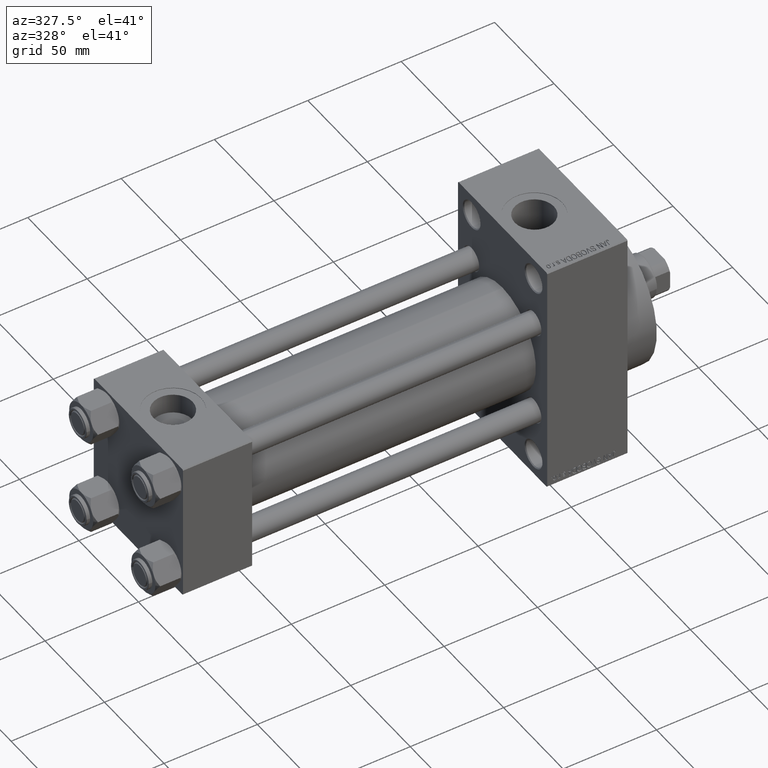
[diagram: clean part render]
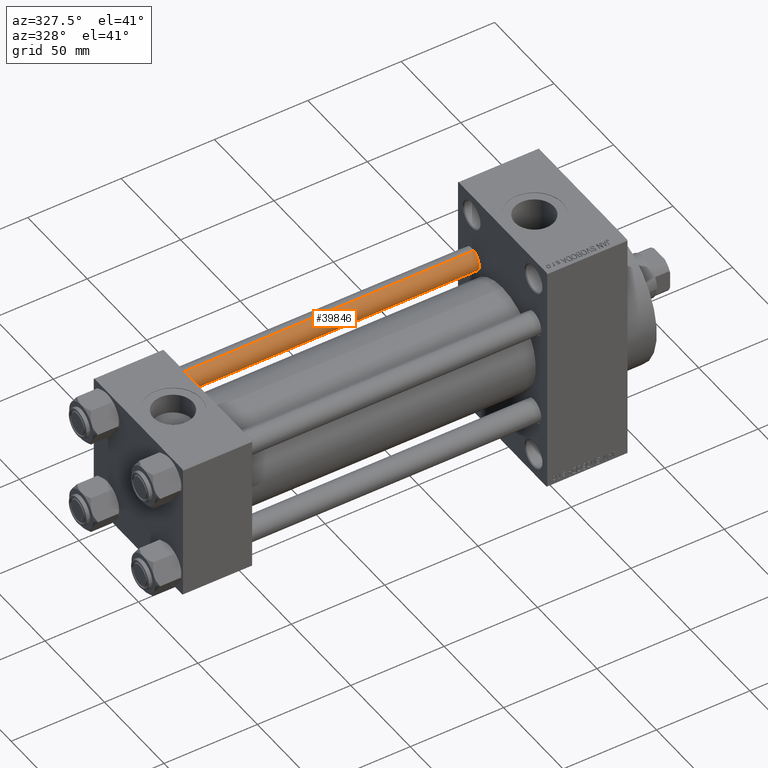
[diagram: same view with one face highlighted and labeled with its STEP entity id]
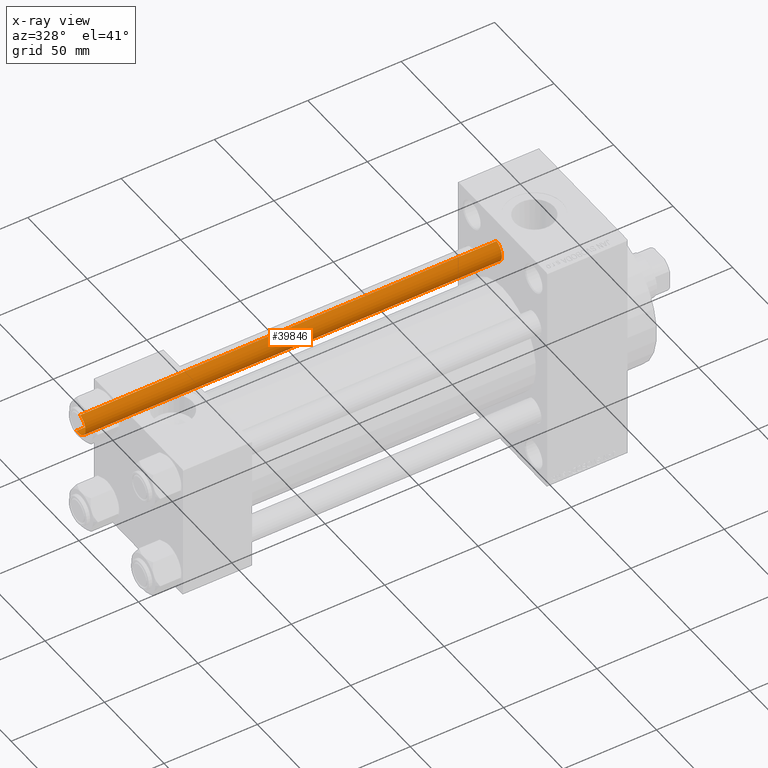
[diagram: x-ray of the same camera — body ghosted, the highlighted face saturated]
A machine part, auxiliary view. The second image highlights one B-rep face of the part: STEP entity #39846.
The next image is the same camera in x-ray: the body ghosted, the highlighted face saturated — about 0% of this face is hidden behind the body in this view.
In plain terms, the highlighted cylindrical surface (edge-blend (fillet) strip) has radius 6 mm, axis along (-1, -0, 0).
Its self-contained STEP definition (entity closure, byte-faithful):
#2439 = FACE_OUTER_BOUND ( 'NONE', #40490, .T. ) ;
#2674 = DIRECTION ( 'NONE',  ( -1.000000000000000000, 0.000000000000000000, 0.000000000000000000 ) ) ;
#3357 = DIRECTION ( 'NONE',  ( -0.000000000000000000, -0.000000000000000000, -1.000000000000000000 ) ) ;
#6268 = AXIS2_PLACEMENT_3D ( 'NONE', #38963, #35389, #2674 ) ;
#6512 = CARTESIAN_POINT ( 'NONE',  ( 6.000000000000000888, 7.347880794884120722E-16, 223.5000000000000000 ) ) ;
#9047 = CIRCLE ( 'NONE', #12115, 6.000000000000000888 ) ;
#9823 = CYLINDRICAL_SURFACE ( 'NONE', #6268, 6.000000000000000888 ) ;
#12115 = AXIS2_PLACEMENT_3D ( 'NONE', #27874, #35751, #17832 ) ;
#12181 = CARTESIAN_POINT ( 'NONE',  ( 0.000000000000000000, 0.000000000000000000, 223.5000000000000000 ) ) ;
#12249 = EDGE_CURVE ( 'NONE', #31034, #33631, #20056, .T. ) ;
#14016 = LINE ( 'NONE', #28587, #26144 ) ;
#14102 = LINE ( 'NONE', #27721, #42754 ) ;
#17832 = DIRECTION ( 'NONE',  ( 1.000000000000000000, 0.000000000000000000, 0.000000000000000000 ) ) ;
#20056 = CIRCLE ( 'NONE', #30769, 6.000000000000000888 ) ;
#21054 = ORIENTED_EDGE ( 'NONE', *, *, #41222, .F. ) ;
#26144 = VECTOR ( 'NONE', #46730, 1000.000000000000000 ) ;
#26287 = DIRECTION ( 'NONE',  ( 1.000000000000000000, 0.000000000000000000, 0.000000000000000000 ) ) ;
#27623 = CARTESIAN_POINT ( 'NONE',  ( -6.000000000000000888, 0.000000000000000000, 223.5000000000000000 ) ) ;
#27721 = CARTESIAN_POINT ( 'NONE',  ( -6.000000000000000888, 0.000000000000000000, 224.0000000000000000 ) ) ;
#27874 = CARTESIAN_POINT ( 'NONE',  ( 0.000000000000000000, 0.000000000000000000, 0.5000000000000004441 ) ) ;
#28010 = EDGE_CURVE ( 'NONE', #44972, #36269, #9047, .T. ) ;
#28587 = CARTESIAN_POINT ( 'NONE',  ( 6.000000000000000888, 7.347880794884120722E-16, 224.0000000000000000 ) ) ;
#28625 = ORIENTED_EDGE ( 'NONE', *, *, #32111, .T. ) ;
#30769 = AXIS2_PLACEMENT_3D ( 'NONE', #12181, #37519, #26287 ) ;
#31034 = VERTEX_POINT ( 'NONE', #6512 ) ;
#31459 = ORIENTED_EDGE ( 'NONE', *, *, #12249, .T. ) ;
#32111 = EDGE_CURVE ( 'NONE', #33631, #44972, #14102, .T. ) ;
#33631 = VERTEX_POINT ( 'NONE', #27623 ) ;
#34860 = ORIENTED_EDGE ( 'NONE', *, *, #28010, .T. ) ;
#35389 = DIRECTION ( 'NONE',  ( -0.000000000000000000, -0.000000000000000000, -1.000000000000000000 ) ) ;
#35751 = DIRECTION ( 'NONE',  ( -0.000000000000000000, -0.000000000000000000, 1.000000000000000000 ) ) ;
#36269 = VERTEX_POINT ( 'NONE', #39867 ) ;
#37519 = DIRECTION ( 'NONE',  ( 0.000000000000000000, 0.000000000000000000, -1.000000000000000000 ) ) ;
#38963 = CARTESIAN_POINT ( 'NONE',  ( 0.000000000000000000, 0.000000000000000000, 224.0000000000000000 ) ) ;
#39846 = ADVANCED_FACE ( 'NONE', ( #2439 ), #9823, .T. ) ;
#39867 = CARTESIAN_POINT ( 'NONE',  ( 6.000000000000000888, 7.347880794884120722E-16, 0.5000000000000004441 ) ) ;
#40490 = EDGE_LOOP ( 'NONE', ( #21054, #31459, #28625, #34860 ) ) ;
#41222 = EDGE_CURVE ( 'NONE', #31034, #36269, #14016, .T. ) ;
#42634 = CARTESIAN_POINT ( 'NONE',  ( -6.000000000000000888, 0.000000000000000000, 0.5000000000000004441 ) ) ;
#42754 = VECTOR ( 'NONE', #3357, 1000.000000000000000 ) ;
#44972 = VERTEX_POINT ( 'NONE', #42634 ) ;
#46730 = DIRECTION ( 'NONE',  ( -0.000000000000000000, -0.000000000000000000, -1.000000000000000000 ) ) ;